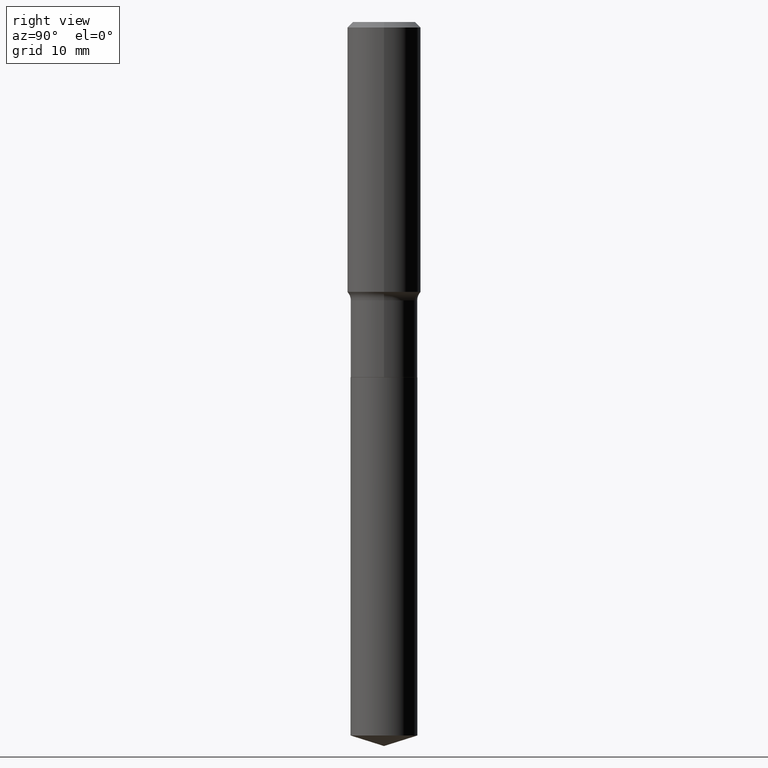
[diagram: clean part render]
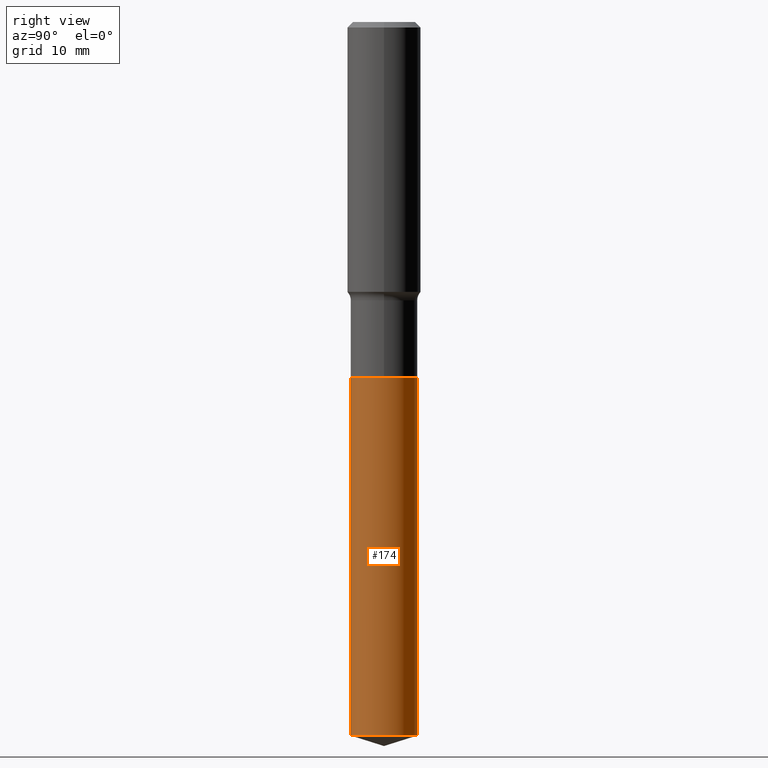
[diagram: same view with one face highlighted and labeled with its STEP entity id]
A machine part, right view. The second image highlights one B-rep face of the part: STEP entity #174.
In plain terms, the highlighted cylindrical surface (edge-blend (fillet) strip) has radius 5.4496 mm, axis along (-0, 0, 1).
Its self-contained STEP definition (entity closure, byte-faithful):
#6 = CARTESIAN_POINT ( 'NONE',  ( -1.498194642497532588E-15, -0.2145500000000079566, -2.279499999999998749 ) ) ;
#28 = CARTESIAN_POINT ( 'NONE',  ( -1.498194642497532588E-15, -0.2145500000000079566, -2.279499999999998749 ) ) ;
#38 = DIRECTION ( 'NONE',  ( -6.982962677686266711E-15, -1.000000000000000000, 2.546584007144500745E-15 ) ) ;
#74 = DIRECTION ( 'NONE',  ( -2.445499818882155207E-29, 3.491436926895881594E-15, 1.000000000000000000 ) ) ;
#88 = DIRECTION ( 'NONE',  ( -2.445499818882154926E-29, 3.491436926895881594E-15, 1.000000000000000000 ) ) ;
#92 = LINE ( 'NONE', #276, #377 ) ;
#94 = ORIENTED_EDGE ( 'NONE', *, *, #294, .F. ) ;
#96 = VECTOR ( 'NONE', #168, 39.37007874015748143 ) ;
#101 = AXIS2_PLACEMENT_3D ( 'NONE', #299, #120, #38 ) ;
#113 = CARTESIAN_POINT ( 'NONE',  ( 5.574446143699018056E-29, -7.958831711892947948E-15, -2.279499999999999638 ) ) ;
#115 = EDGE_CURVE ( 'NONE', #264, #274, #141, .T. ) ;
#120 = DIRECTION ( 'NONE',  ( -2.445499818882155207E-29, 3.491436926895881594E-15, 1.000000000000000000 ) ) ;
#140 = EDGE_CURVE ( 'NONE', #247, #184, #374, .T. ) ;
#141 = CIRCLE ( 'NONE', #101, 0.2145499999999999907 ) ;
#168 = DIRECTION ( 'NONE',  ( -2.445499818882154926E-29, 3.491436926895881594E-15, 1.000000000000000000 ) ) ;
#174 = ADVANCED_FACE ( 'NONE', ( #413 ), #195, .T. ) ;
#178 = AXIS2_PLACEMENT_3D ( 'NONE', #444, #491, #410 ) ;
#184 = VERTEX_POINT ( 'NONE', #300 ) ;
#195 = CYLINDRICAL_SURFACE ( 'NONE', #178, 0.2145499999999999907 ) ;
#226 = ORIENTED_EDGE ( 'NONE', *, *, #115, .T. ) ;
#228 = DIRECTION ( 'NONE',  ( -6.982962677686266711E-15, -1.000000000000000000, 3.819876010716751118E-15 ) ) ;
#247 = VERTEX_POINT ( 'NONE', #28 ) ;
#264 = VERTEX_POINT ( 'NONE', #452 ) ;
#274 = VERTEX_POINT ( 'NONE', #351 ) ;
#276 = CARTESIAN_POINT ( 'NONE',  ( 1.524469439573350498E-15, 0.2145499999999920526, -2.279500000000000526 ) ) ;
#294 = EDGE_CURVE ( 'NONE', #264, #247, #383, .T. ) ;
#299 = CARTESIAN_POINT ( 'NONE',  ( 1.119555622036104611E-28, -1.598408329452252082E-14, -4.578052644846014374 ) ) ;
#300 = CARTESIAN_POINT ( 'NONE',  ( 1.524469439573407493E-15, 0.2145499999999920804, -2.279500000000000526 ) ) ;
#336 = EDGE_CURVE ( 'NONE', #274, #184, #92, .T. ) ;
#351 = CARTESIAN_POINT ( 'NONE',  ( 1.524469439573406507E-15, 0.2145499999999839758, -4.578052644846015262 ) ) ;
#374 = CIRCLE ( 'NONE', #394, 0.2145499999999999907 ) ;
#377 = VECTOR ( 'NONE', #88, 39.37007874015748143 ) ;
#383 = LINE ( 'NONE', #6, #96 ) ;
#386 = EDGE_LOOP ( 'NONE', ( #226, #399, #492, #94 ) ) ;
#394 = AXIS2_PLACEMENT_3D ( 'NONE', #113, #74, #228 ) ;
#399 = ORIENTED_EDGE ( 'NONE', *, *, #336, .T. ) ;
#410 = DIRECTION ( 'NONE',  ( -6.982962677686266711E-15, -1.000000000000000000, 3.819876010716751118E-15 ) ) ;
#413 = FACE_OUTER_BOUND ( 'NONE', #386, .T. ) ;
#444 = CARTESIAN_POINT ( 'NONE',  ( 5.574446143699018056E-29, -7.958831711892947948E-15, -2.279499999999999638 ) ) ;
#452 = CARTESIAN_POINT ( 'NONE',  ( -1.498194642497476381E-15, -0.2145500000000159779, -4.578052644846013486 ) ) ;
#491 = DIRECTION ( 'NONE',  ( -2.445499818882155207E-29, 3.491436926895881594E-15, 1.000000000000000000 ) ) ;
#492 = ORIENTED_EDGE ( 'NONE', *, *, #140, .F. ) ;